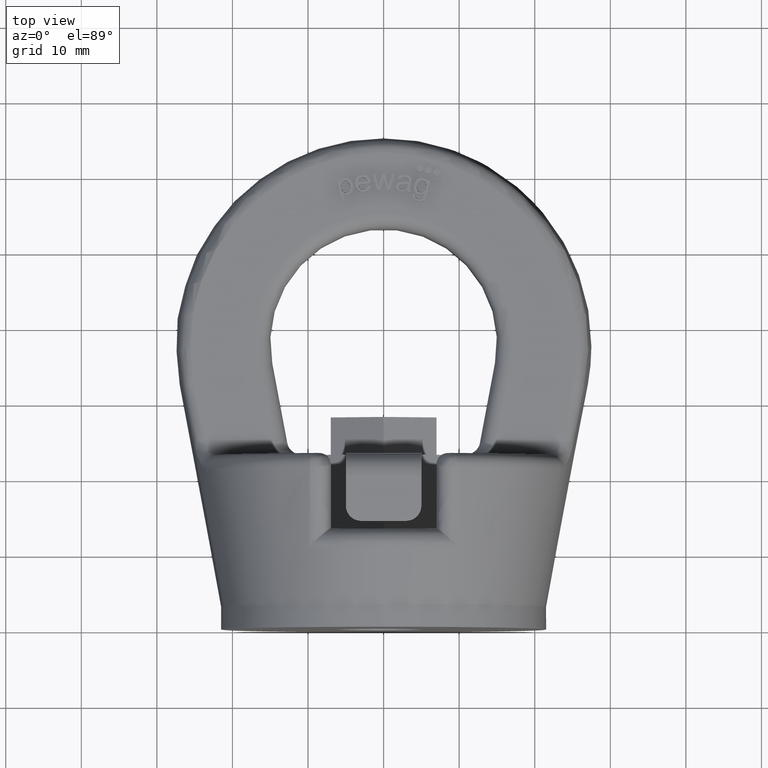
[diagram: clean part render]
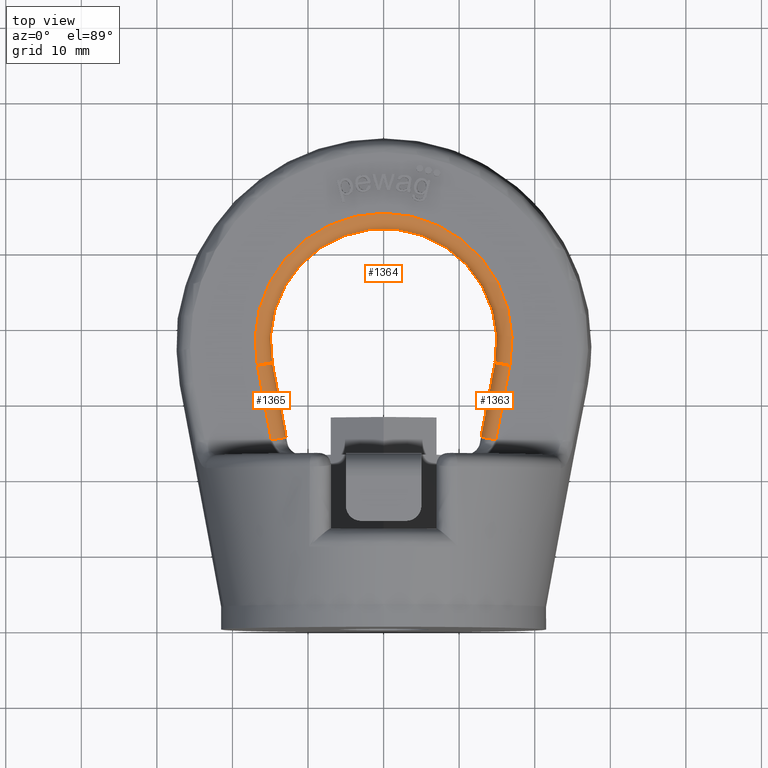
[diagram: same view with one multi-face feature highlighted, each face labeled with its STEP entity id]
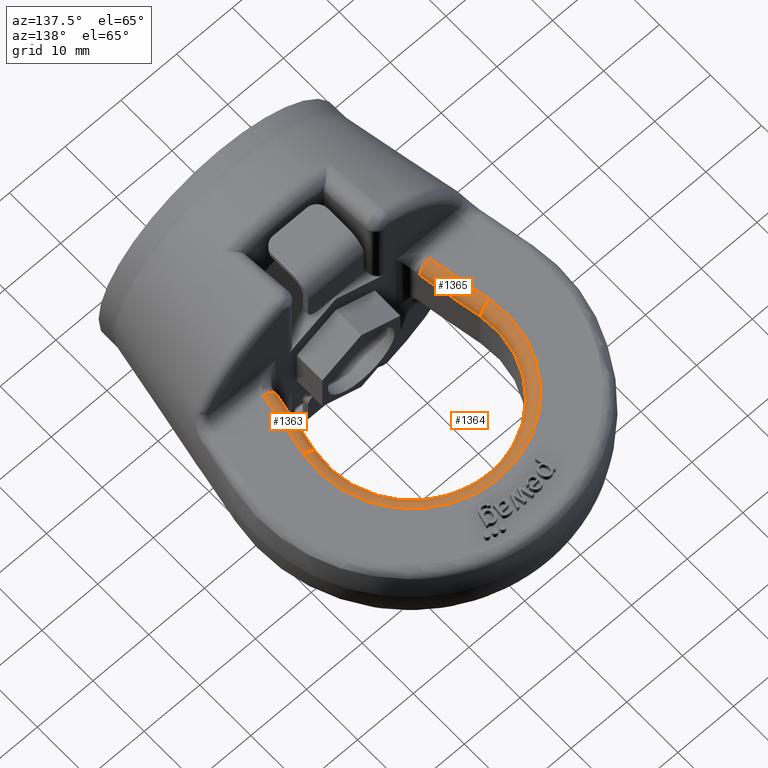
[diagram: same view with one multi-face feature highlighted, each face labeled with its STEP entity id]
A machine part, top view. The highlighted faces form ONE feature: a constant-radius fillet chain: 3 tangent blend faces with common blend radius 2 mm. The faces share edges in the B-rep.
A second angle (auxiliary view) of the same feature is appended — it is thin or edge-on in the first view.
Their STEP definitions:
[1] entity #1364 (Torus):
#1018=TOROIDAL_SURFACE('',#5186,17.,2.);
#1139=FACE_OUTER_BOUND('',#1883,.T.);
#1364=ADVANCED_FACE('',(#1139),#1018,.T.);
#1679=CIRCLE('',#5104,17.);
#1693=CIRCLE('',#5123,15.);
#1714=CIRCLE('',#5183,2.);
#1715=CIRCLE('',#5185,2.);
#1883=EDGE_LOOP('',(#2963,#2964,#2965,#2966));
#2963=ORIENTED_EDGE('',*,*,#4430,.T.);
#2964=ORIENTED_EDGE('',*,*,#4286,.F.);
#2965=ORIENTED_EDGE('',*,*,#4431,.F.);
#2966=ORIENTED_EDGE('',*,*,#4343,.F.);
#3902=VERTEX_POINT('',#6400);
#3903=VERTEX_POINT('',#6401);
#3956=VERTEX_POINT('',#6719);
#3957=VERTEX_POINT('',#6721);
#4286=EDGE_CURVE('',#3902,#3903,#1679,.T.);
#4343=EDGE_CURVE('',#3956,#3957,#1693,.T.);
#4430=EDGE_CURVE('',#3956,#3903,#1714,.T.);
#4431=EDGE_CURVE('',#3957,#3902,#1715,.T.);
#5104=AXIS2_PLACEMENT_3D('',#6399,#5399,#5400);
#5123=AXIS2_PLACEMENT_3D('',#6720,#5455,#5456);
#5183=AXIS2_PLACEMENT_3D('',#7225,#5616,#5617);
#5185=AXIS2_PLACEMENT_3D('',#7227,#5620,#5621);
#5186=AXIS2_PLACEMENT_3D('',#7228,#5622,#5623);
#5399=DIRECTION('',(0.,-1.33440267382831E-16,-1.));
#5400=DIRECTION('',(0.,1.,-1.53063836115601E-16));
#5455=DIRECTION('',(0.,1.33440267382831E-16,1.));
#5456=DIRECTION('',(0.,1.,-1.15648231731787E-16));
#5616=DIRECTION('',(0.184626416135144,0.982808774108724,0.));
#5617=DIRECTION('',(-0.982808774108724,0.184626416135144,0.));
#5620=DIRECTION('',(0.184626416135144,-0.982808774108724,0.));
#5621=DIRECTION('',(0.982808774108724,0.184626416135144,0.));
#5622=DIRECTION('',(0.,-1.33440267382831E-16,-1.));
#5623=DIRECTION('',(0.,1.,-1.3695185336659E-16));
#6399=CARTESIAN_POINT('',(0.,38.,6.));
#6400=CARTESIAN_POINT('',(-16.7077491598483,34.8613509257026,6.00000000000001));
#6401=CARTESIAN_POINT('',(16.7077491598483,34.8613509257025,6.00000000000001));
#6719=CARTESIAN_POINT('',(14.7421316116309,35.2306037579728,4.));
#6720=CARTESIAN_POINT('',(0.,38.,4.));
#6721=CARTESIAN_POINT('',(-14.7421316116309,35.2306037579728,4.));
#7225=CARTESIAN_POINT('',(16.7077491598483,34.8613509257025,4.00000000000001));
#7227=CARTESIAN_POINT('',(-16.7077491598483,34.8613509257026,4.00000000000001));
#7228=CARTESIAN_POINT('',(0.,38.,4.));
[2] entity #1365 (Cylinder):
#1078=CYLINDRICAL_SURFACE('',#5188,2.);
#1140=FACE_OUTER_BOUND('',#1884,.T.);
#1365=ADVANCED_FACE('',(#1140),#1078,.T.);
#1715=CIRCLE('',#5185,2.);
#1716=CIRCLE('',#5187,2.);
#1884=EDGE_LOOP('',(#2967,#2968,#2969,#2970));
#2123=LINE('',#6420,#2393);
#2139=LINE('',#6726,#2409);
#2393=VECTOR('',#5406,1.);
#2409=VECTOR('',#5462,1.);
#2967=ORIENTED_EDGE('',*,*,#4431,.T.);
#2968=ORIENTED_EDGE('',*,*,#4293,.F.);
#2969=ORIENTED_EDGE('',*,*,#4432,.F.);
#2970=ORIENTED_EDGE('',*,*,#4346,.F.);
#3902=VERTEX_POINT('',#6400);
#3909=VERTEX_POINT('',#6419);
#3957=VERTEX_POINT('',#6721);
#3959=VERTEX_POINT('',#6727);
#4293=EDGE_CURVE('',#3909,#3902,#2123,.T.);
#4346=EDGE_CURVE('',#3957,#3959,#2139,.T.);
#4431=EDGE_CURVE('',#3957,#3902,#1715,.T.);
#4432=EDGE_CURVE('',#3959,#3909,#1716,.T.);
#5185=AXIS2_PLACEMENT_3D('',#7227,#5620,#5621);
#5187=AXIS2_PLACEMENT_3D('',#7229,#5624,#5625);
#5188=AXIS2_PLACEMENT_3D('',#7230,#5626,#5627);
#5406=DIRECTION('',(-0.184626416135144,0.982808774108724,-1.31146265603261E-16));
#5462=DIRECTION('',(0.184626416135144,-0.982808774108724,1.31146265603261E-16));
#5620=DIRECTION('',(0.184626416135144,-0.982808774108724,0.));
#5621=DIRECTION('',(0.982808774108724,0.184626416135144,0.));
#5624=DIRECTION('',(0.184626416135144,-0.982808774108724,-6.40551556710195E-16));
#5625=DIRECTION('',(0.982808774108724,0.184626416135144,0.));
#5626=DIRECTION('',(0.184626416135144,-0.982808774108724,1.31146265603261E-16));
#5627=DIRECTION('',(0.982808774108723,0.184626416135147,0.));
#6400=CARTESIAN_POINT('',(-16.7077491598483,34.8613509257026,6.00000000000001));
#6419=CARTESIAN_POINT('',(-14.8552363133746,25.,6.00000000000001));
#6420=CARTESIAN_POINT('',(-16.7077491598483,34.8613509257025,6.00000000000001));
#6721=CARTESIAN_POINT('',(-14.7421316116309,35.2306037579728,4.));
#6726=CARTESIAN_POINT('',(-12.8202524460259,25.,4.00000000000001));
#6727=CARTESIAN_POINT('',(-12.8896187651572,25.3692528322703,4.00000000000001));
#7227=CARTESIAN_POINT('',(-16.7077491598483,34.8613509257026,4.00000000000001));
#7229=CARTESIAN_POINT('',(-14.8552363133746,25.,4.00000000000001));
#7230=CARTESIAN_POINT('',(-22.4159262938337,65.2472875044699,4.));
[3] entity #1363 (Cylinder):
#1077=CYLINDRICAL_SURFACE('',#5184,2.);
#1138=FACE_OUTER_BOUND('',#1882,.T.);
#1363=ADVANCED_FACE('',(#1138),#1077,.T.);
#1713=CIRCLE('',#5182,2.);
#1714=CIRCLE('',#5183,2.);
#1882=EDGE_LOOP('',(#2959,#2960,#2961,#2962));
#2120=LINE('',#6402,#2390);
#2165=LINE('',#6882,#2435);
#2390=VECTOR('',#5401,1.);
#2435=VECTOR('',#5508,1.);
#2959=ORIENTED_EDGE('',*,*,#4429,.T.);
#2960=ORIENTED_EDGE('',*,*,#4287,.F.);
#2961=ORIENTED_EDGE('',*,*,#4430,.F.);
#2962=ORIENTED_EDGE('',*,*,#4384,.F.);
#3903=VERTEX_POINT('',#6401);
#3904=VERTEX_POINT('',#6403);
#3956=VERTEX_POINT('',#6719);
#3995=VERTEX_POINT('',#6881);
#4287=EDGE_CURVE('',#3903,#3904,#2120,.T.);
#4384=EDGE_CURVE('',#3995,#3956,#2165,.T.);
#4429=EDGE_CURVE('',#3995,#3904,#1713,.T.);
#4430=EDGE_CURVE('',#3956,#3903,#1714,.T.);
#5182=AXIS2_PLACEMENT_3D('',#7212,#5614,#5615);
#5183=AXIS2_PLACEMENT_3D('',#7225,#5616,#5617);
#5184=AXIS2_PLACEMENT_3D('',#7226,#5618,#5619);
#5401=DIRECTION('',(-0.184626416135144,-0.982808774108724,1.31146265603261E-16));
#5508=DIRECTION('',(0.184626416135144,0.982808774108724,-1.31146265603261E-16));
#5614=DIRECTION('',(0.184626416135144,0.982808774108724,3.40980290568478E-15));
#5615=DIRECTION('',(-0.982808774108724,0.184626416135144,0.));
#5616=DIRECTION('',(0.184626416135144,0.982808774108724,0.));
#5617=DIRECTION('',(-0.982808774108724,0.184626416135144,0.));
#5618=DIRECTION('',(0.184626416135144,0.982808774108724,-1.31146265603261E-16));
#5619=DIRECTION('',(-0.982808774108723,0.184626416135147,0.));
#6401=CARTESIAN_POINT('',(16.7077491598483,34.8613509257025,6.00000000000001));
#6402=CARTESIAN_POINT('',(14.7858699942434,24.6307471677297,6.00000000000001));
#6403=CARTESIAN_POINT('',(14.8552363133746,25.,6.00000000000001));
#6719=CARTESIAN_POINT('',(14.7421316116309,35.2306037579728,4.));
#6881=CARTESIAN_POINT('',(12.8896187651572,25.3692528322703,4.00000000000001));
#6882=CARTESIAN_POINT('',(14.7421316116309,35.2306037579728,4.00000000000001));
#7212=CARTESIAN_POINT('',(14.8552363133746,25.,4.00000000000001));
#7225=CARTESIAN_POINT('',(16.7077491598483,34.8613509257025,4.00000000000001));
#7226=CARTESIAN_POINT('',(24.4270541923932,75.9529827453521,4.));